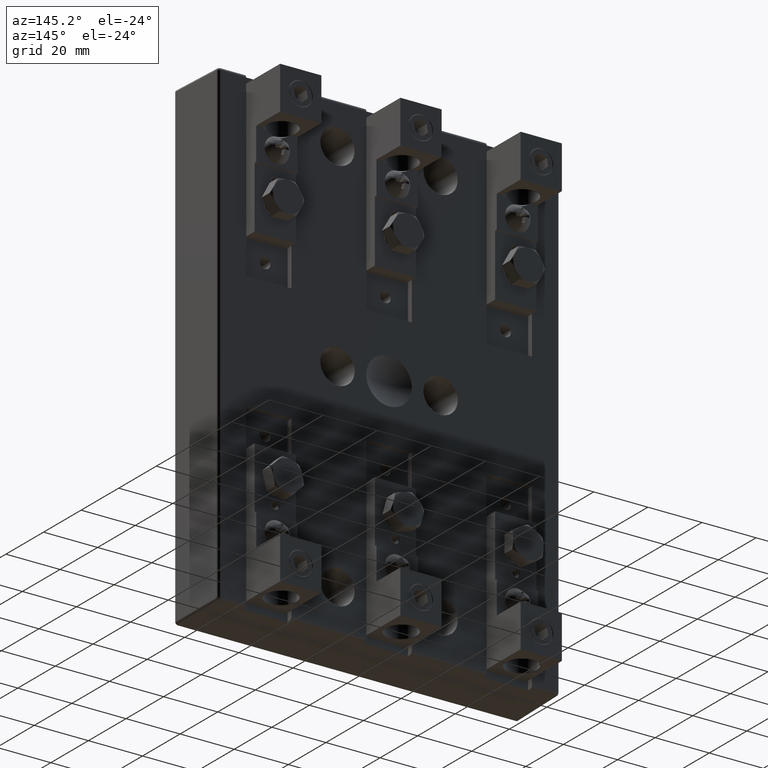
[diagram: clean part render]
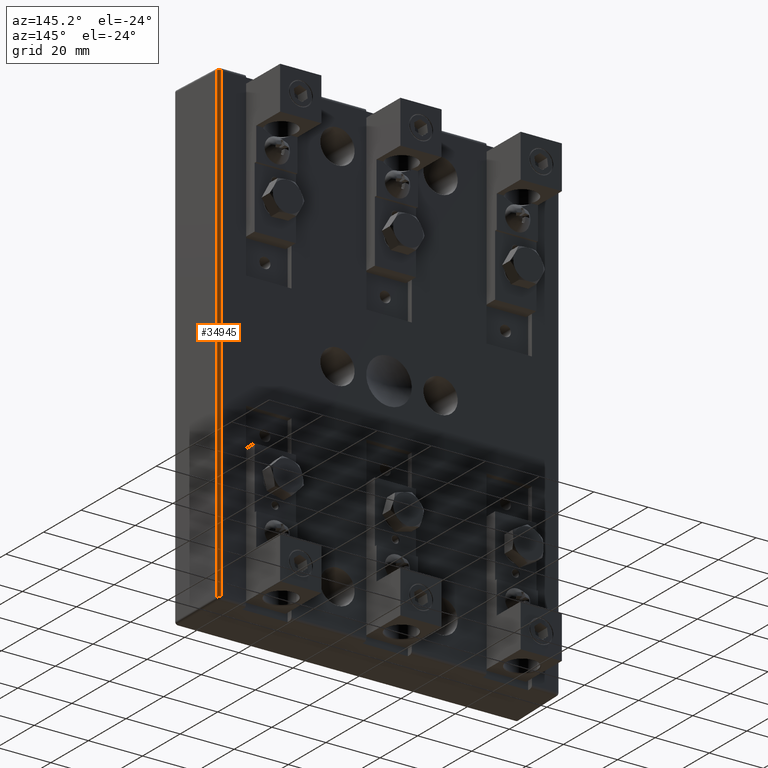
[diagram: same view with one face highlighted and labeled with its STEP entity id]
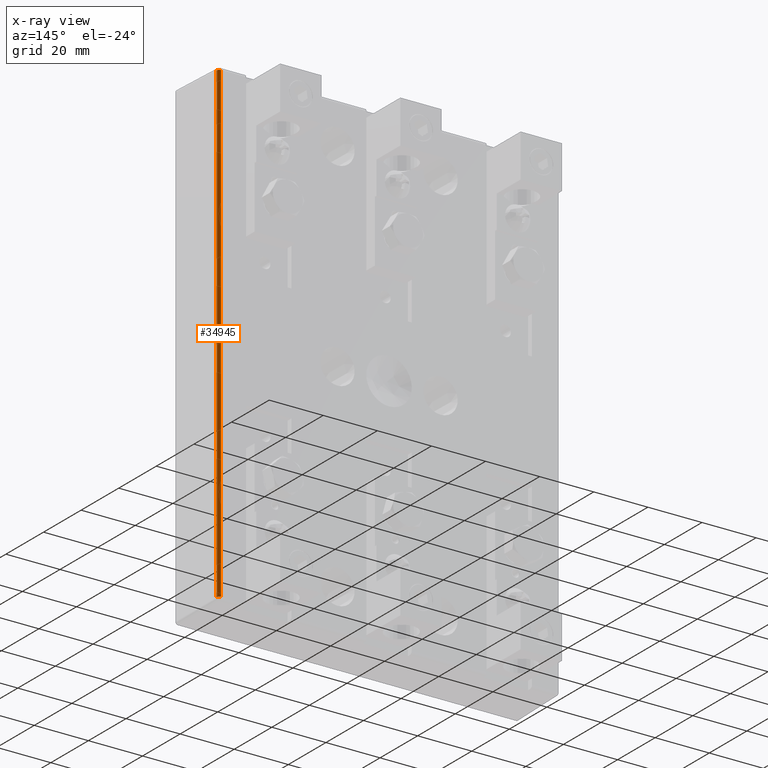
[diagram: x-ray of the same camera — body ghosted, the highlighted face saturated]
A machine part, auxiliary view. The second image highlights one B-rep face of the part: STEP entity #34945.
The next image is the same camera in x-ray: the body ghosted, the highlighted face saturated — about 0% of this face is hidden behind the body in this view.
In plain terms, the highlighted cylindrical surface (edge-blend (fillet) strip) has radius 1.016 mm, axis along (0, -0, -1).
Its self-contained STEP definition (entity closure, byte-faithful):
#159 = AXIS2_PLACEMENT_3D ( 'NONE', #7587, #31602, #629 ) ;
#629 = DIRECTION ( 'NONE',  ( 0.0000000000000000000, 1.000000000000000000, 0.0000000000000000000 ) ) ;
#1086 = LINE ( 'NONE', #33560, #9172 ) ;
#1350 = ORIENTED_EDGE ( 'NONE', *, *, #9173, .F. ) ;
#7055 = CARTESIAN_POINT ( 'NONE',  ( 2.445331652338533300, 0.8800000000000000000, 3.499999999999984000 ) ) ;
#7587 = CARTESIAN_POINT ( 'NONE',  ( 2.445331652338533300, 0.8400000000000000800, 3.499999999999984500 ) ) ;
#8204 = CARTESIAN_POINT ( 'NONE',  ( 2.445331652338533300, 0.8799999999999998900, -3.445331652338525300 ) ) ;
#8416 = CARTESIAN_POINT ( 'NONE',  ( 2.485325560144785200, 0.8406980962574914800, 3.445331652338525300 ) ) ;
#8889 = ORIENTED_EDGE ( 'NONE', *, *, #17405, .T. ) ;
#9172 = VECTOR ( 'NONE', #26747, 39.37007874015748100 ) ;
#9173 = EDGE_CURVE ( 'NONE', #19350, #17833, #35137, .T. ) ;
#9952 = DIRECTION ( 'NONE',  ( 0.0000000000000000000, 6.123233995736766000E-017, 1.000000000000000000 ) ) ;
#14885 = AXIS2_PLACEMENT_3D ( 'NONE', #40982, #20375, #44434 ) ;
#15302 = VERTEX_POINT ( 'NONE', #8416 ) ;
#17405 = EDGE_CURVE ( 'NONE', #19350, #32604, #21363, .T. ) ;
#17456 = ORIENTED_EDGE ( 'NONE', *, *, #41013, .F. ) ;
#17833 = VERTEX_POINT ( 'NONE', #33579 ) ;
#19350 = VERTEX_POINT ( 'NONE', #8204 ) ;
#19404 = CARTESIAN_POINT ( 'NONE',  ( 2.445331652338533300, 0.8799999999999998900, 3.445331652338525300 ) ) ;
#19885 = CIRCLE ( 'NONE', #32094, 0.04000000000000011900 ) ;
#20375 = DIRECTION ( 'NONE',  ( -0.0000000000000000000, -6.123233995736766000E-017, -1.000000000000000000 ) ) ;
#21363 = LINE ( 'NONE', #7055, #30519 ) ;
#21645 = EDGE_LOOP ( 'NONE', ( #1350, #8889, #17456, #24036 ) ) ;
#24036 = ORIENTED_EDGE ( 'NONE', *, *, #44565, .T. ) ;
#24260 = DIRECTION ( 'NONE',  ( -0.0000000000000000000, 4.937591343513748400E-033, 1.000000000000000000 ) ) ;
#26747 = DIRECTION ( 'NONE',  ( 0.0000000000000000000, -4.937591343513748400E-033, -1.000000000000000000 ) ) ;
#27349 = CYLINDRICAL_SURFACE ( 'NONE', #159, 0.03999999999999984800 ) ;
#28426 = FACE_OUTER_BOUND ( 'NONE', #21645, .T. ) ;
#30519 = VECTOR ( 'NONE', #24260, 39.37007874015748100 ) ;
#30520 = CARTESIAN_POINT ( 'NONE',  ( 2.445331652338533300, 0.8399999999999997500, 3.445331652338524900 ) ) ;
#31602 = DIRECTION ( 'NONE',  ( 0.0000000000000000000, -4.937591343513748400E-033, -1.000000000000000000 ) ) ;
#32094 = AXIS2_PLACEMENT_3D ( 'NONE', #30520, #9952, #33990 ) ;
#32604 = VERTEX_POINT ( 'NONE', #19404 ) ;
#33560 = CARTESIAN_POINT ( 'NONE',  ( 2.485325560144788300, 0.8406980962574915900, 3.499999999999984500 ) ) ;
#33579 = CARTESIAN_POINT ( 'NONE',  ( 2.485325560144785200, 0.8406980962574913700, -3.445331652338525300 ) ) ;
#33990 = DIRECTION ( 'NONE',  ( 1.000000000000000000, 0.0000000000000000000, 0.0000000000000000000 ) ) ;
#34945 = ADVANCED_FACE ( 'NONE', ( #28426 ), #27349, .T. ) ;
#35137 = CIRCLE ( 'NONE', #14885, 0.04000000000000011900 ) ;
#40982 = CARTESIAN_POINT ( 'NONE',  ( 2.445331652338533300, 0.8399999999999997500, -3.445331652338525300 ) ) ;
#41013 = EDGE_CURVE ( 'NONE', #15302, #32604, #19885, .T. ) ;
#44434 = DIRECTION ( 'NONE',  ( 1.000000000000000000, 6.829619984160637700E-015, 0.0000000000000000000 ) ) ;
#44565 = EDGE_CURVE ( 'NONE', #15302, #17833, #1086, .T. ) ;